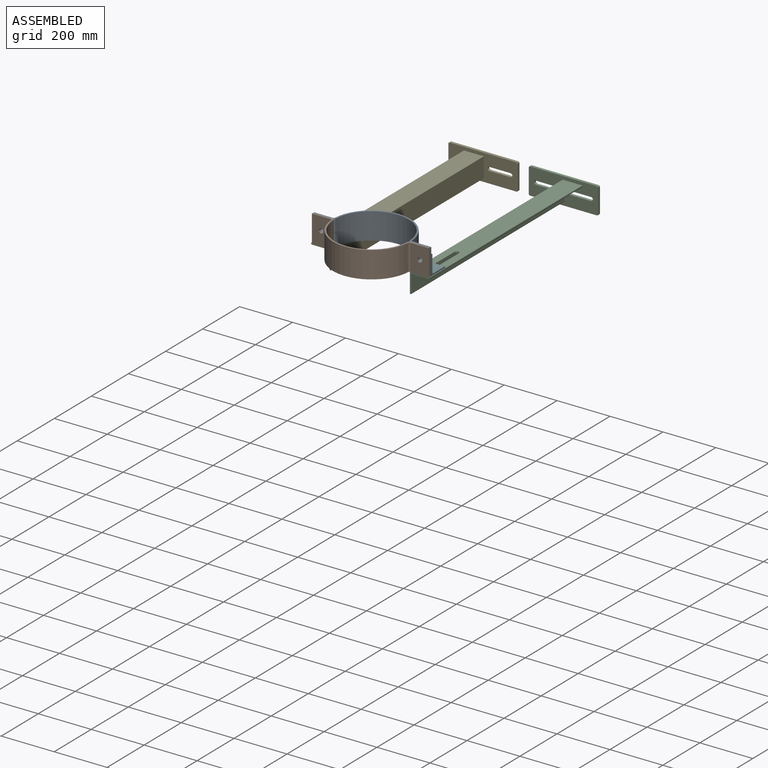
[diagram: assembled view]
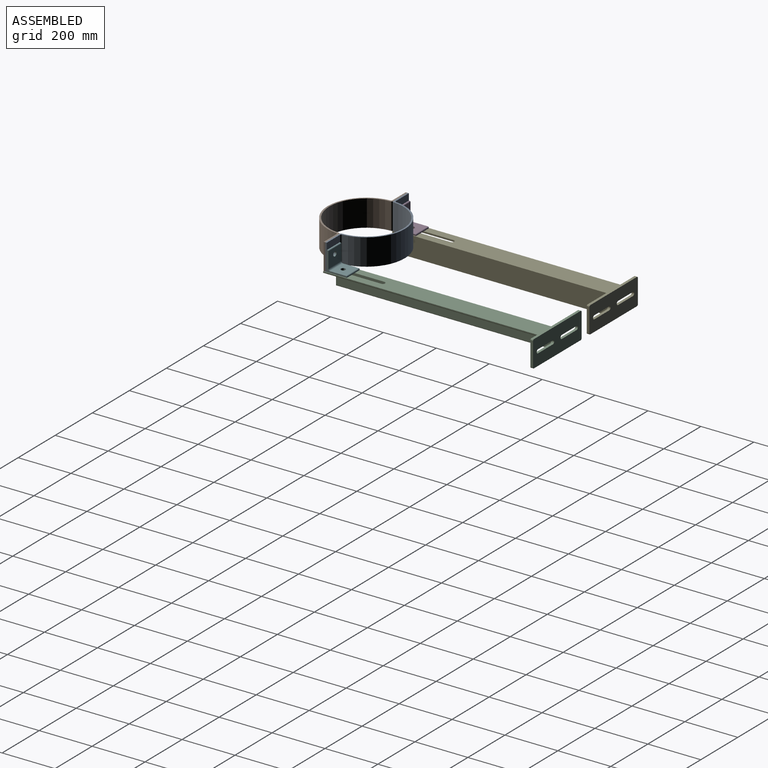
[diagram: assembled view, second angle]
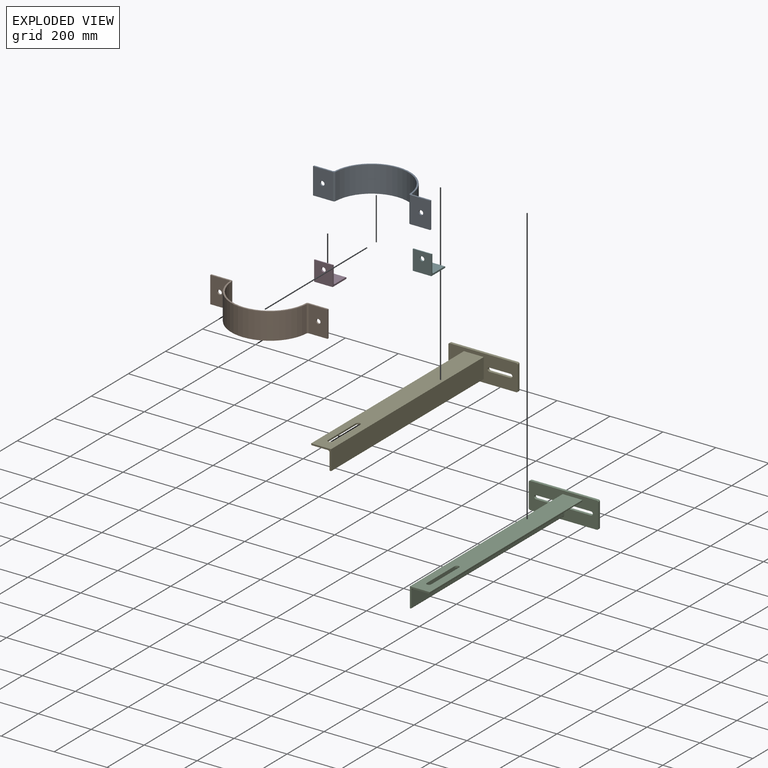
[diagram: exploded view]
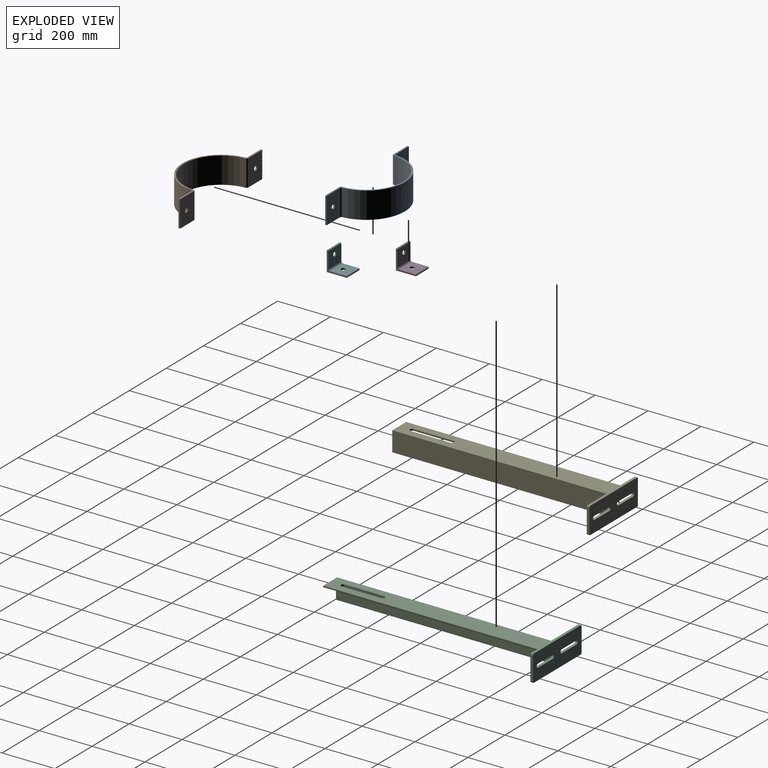
[diagram: exploded view, second angle]
ASSEMBLY  parts=6 mates=5
PART A: 16 faces, bbox 443.1x146x100 mm
  f0: cylinder r=6mm len=100mm, axis (0,0,-1), area 895.1mm2, adj f1,f11,f12,f13
  f1: cylinder r=146mm len=291.09mm, axis (0,0,-1), area 43559.6mm2, adj f0,f2,f12,f13
  f2: cylinder r=6mm len=100mm, axis (0,0,-1), area 895.1mm2, adj f1,f3,f12,f13
  f3: plane 100x70mm, normal (0,1,0), area 6773.1mm2, adj f2,f4,f12,f13,f15
  f4: plane 100x6mm, normal (-1,0,0), area 600mm2, adj f3,f5,f12,f13
  f5: plane 100x75.65mm, normal (0,-1,0), area 7338mm2, adj f4,f6,f12,f13,f15
  f6: cylinder r=6mm len=100mm, axis (0,0,-1), area 917.8mm2, adj f5,f7,f12,f13
  f7: cylinder r=140mm len=279.76mm, axis (0,0,-1), area 42831.3mm2, adj f6,f8,f12,f13
  f8: cylinder r=6mm len=100mm, axis (0,0,-1), area 917.8mm2, adj f7,f9,f12,f13
  f9: plane 100x75.65mm, normal (0,-1,0), area 7338mm2, adj f8,f10,f12,f13,f14
  f10: plane 100x6mm, normal (1,0,0), area 600mm2, adj f9,f11,f12,f13
  f11: plane 100x70mm, normal (0,1,0), area 6773.1mm2, adj f0,f10,f12,f13,f14
  f12: plane 443.05x146mm, normal (0,0,1), area 3601mm2, adj f0,f1,f2,f3,f4,f5,f6,f7
  f13: plane 443.05x146mm, normal (0,0,-1), area 3601mm2, adj f0,f1,f2,f3,f4,f5,f6,f7
  f14: cylinder r=8.5mm len=17mm, axis (0,-1,0), area 320.4mm2, adj f9,f11
  f15: cylinder r=8.5mm len=17mm, axis (0,-1,0), area 320.4mm2, adj f3,f5
PART B: 16 faces, bbox 443.1x146x100 mm
  f0: cylinder r=6mm len=100mm, axis (0,0,-1), area 895.1mm2, adj f1,f11,f12,f13
  f1: cylinder r=146mm len=291.09mm, axis (0,0,-1), area 43559.6mm2, adj f0,f2,f12,f13
  f2: cylinder r=6mm len=100mm, axis (0,0,-1), area 895.1mm2, adj f1,f3,f12,f13
  f3: plane 100x70mm, normal (0,-1,0), area 6773.1mm2, adj f2,f4,f12,f13,f15
  f4: plane 100x6mm, normal (-1,0,0), area 600mm2, adj f3,f5,f12,f13
  f5: plane 100x75.65mm, normal (0,1,0), area 7338mm2, adj f4,f6,f12,f13,f15
  f6: cylinder r=6mm len=100mm, axis (0,0,-1), area 917.8mm2, adj f5,f7,f12,f13
  f7: cylinder r=140mm len=279.76mm, axis (0,0,-1), area 42831.3mm2, adj f6,f8,f12,f13
  f8: cylinder r=6mm len=100mm, axis (0,0,-1), area 917.8mm2, adj f7,f9,f12,f13
  f9: plane 100x75.65mm, normal (0,1,0), area 7338mm2, adj f8,f10,f12,f13,f14
  f10: plane 100x6mm, normal (1,0,0), area 600mm2, adj f9,f11,f12,f13
  f11: plane 100x70mm, normal (0,-1,0), area 6773.1mm2, adj f0,f10,f12,f13,f14
  f12: plane 443.05x146mm, normal (0,0,1), area 3601mm2, adj f0,f1,f2,f3,f4,f5,f6,f7
  f13: plane 443.05x146mm, normal (0,0,-1), area 3601mm2, adj f0,f1,f2,f3,f4,f5,f6,f7
  f14: cylinder r=8.5mm len=17mm, axis (0,1,0), area 320.4mm2, adj f9,f11
  f15: cylinder r=8.5mm len=17mm, axis (0,1,0), area 320.4mm2, adj f3,f5
PART C: 32 faces, bbox 262x834.5x100 mm
  f0: plane 824.5x3mm, normal (1,0,0), area 2473.5mm2, adj f1,f8,f13,f31
  f1: plane 824.5x75mm, normal (0,0,1), area 59060.5mm2, adj f0,f2,f9,f10,f11,f12,f13,f31
  f2: plane 824.5x75mm, normal (-1,0,0), area 61837.5mm2, adj f1,f3,f13,f31
  f3: plane 824.5x3mm, normal (0,0,-1), area 2473.5mm2, adj f2,f4,f13,f31
  f4: cylinder r=3mm len=824.5mm, axis (0,-1,0), area 3885.4mm2, adj f3,f5,f13,f31
  f5: plane 824.5x60mm, normal (1,0,0), area 49470mm2, adj f4,f6,f13,f31
  f6: cylinder r=6mm len=824.5mm, axis (0,-1,0), area 7770.7mm2, adj f5,f7,f13,f31
  f7: plane 824.5x60mm, normal (0,0,-1), area 46693mm2, adj f6,f8,f9,f10,f11,f12,f13,f31
  f8: cylinder r=3mm len=824.5mm, axis (0,-1,0), area 3885.4mm2, adj f0,f7,f13,f31
  f9: cylinder r=8.5mm len=17mm, axis (0,0,1), area 160.2mm2, adj f1,f7,f10,f12
  f10: plane 150x6mm, normal (1,0,0), area 900mm2, adj f1,f7,f9,f11
  f11: cylinder r=8.5mm len=17mm, axis (0,0,1), area 160.2mm2, adj f1,f7,f10,f12
  f12: plane 150x6mm, normal (-1,0,0), area 900mm2, adj f1,f7,f9,f11
  f13: plane 262x100mm, normal (0,-1,0), area 22762.8mm2, adj f0,f1,f2,f3,f4,f5,f6,f7
  f14: plane 90x10mm, normal (1,0,0), area 900mm2, adj f13,f15,f29,f30
  f15: cylinder r=5mm len=10mm, axis (0,-1,0), area 78.5mm2, adj f13,f14,f16,f30
  f16: plane 252x10mm, normal (0,0,-1), area 2520mm2, adj f13,f15,f17,f30
  f17: cylinder r=5mm len=10mm, axis (0,-1,0), area 78.5mm2, adj f13,f16,f18,f30
  f18: plane 90x10mm, normal (-1,0,0), area 900mm2, adj f13,f17,f19,f30
  f19: cylinder r=5mm len=10mm, axis (0,-1,0), area 78.5mm2, adj f13,f18,f20,f30
  f20: plane 252x10mm, normal (0,0,1), area 2520mm2, adj f13,f19,f29,f30
  f21: cylinder r=7mm len=14mm, axis (0,-1,0), area 219.9mm2, adj f13,f22,f27,f30
  f22: plane 80x10mm, normal (0,0,1), area 800mm2, adj f13,f21,f23,f30
  f23: cylinder r=7mm len=14mm, axis (0,-1,0), area 219.9mm2, adj f13,f22,f27,f30
  f24: cylinder r=7mm len=14mm, axis (0,-1,0), area 219.9mm2, adj f13,f25,f28,f30
  f25: plane 80x10mm, normal (0,0,-1), area 800mm2, adj f13,f24,f26,f30
  f26: cylinder r=7mm len=14mm, axis (0,-1,0), area 219.9mm2, adj f13,f25,f28,f30
  f27: plane 80x10mm, normal (0,0,-1), area 800mm2, adj f13,f21,f23,f30
  f28: plane 80x10mm, normal (0,0,1), area 800mm2, adj f13,f24,f26,f30
  f29: cylinder r=5mm len=10mm, axis (0,-1,0), area 78.5mm2, adj f13,f14,f20,f30
  f30: plane 262x100mm, normal (0,1,0), area 23630.7mm2, adj f14,f15,f16,f17,f18,f19,f20,f21
  f31: plane 75x75mm, normal (0,-1,0), area 867.9mm2, adj f0,f1,f2,f3,f4,f5,f6,f7
PART D: 13 faces, bbox 70x75x75 mm
  f0: plane 75x70mm, normal (0,-1,0), area 5023mm2, adj f2,f3,f10,f11,f12
  f1: plane 70x3mm, normal (0,1,0), area 210mm2, adj f2,f9,f11,f12
  f2: plane 75x70mm, normal (0,0,-1), area 5023mm2, adj f0,f1,f7,f11,f12
  f3: plane 70x3mm, normal (0,0,1), area 210mm2, adj f0,f8,f11,f12
  f4: plane 70x60mm, normal (0,0,1), area 3973mm2, adj f6,f7,f9,f11,f12
  f5: plane 70x60mm, normal (0,1,0), area 3973mm2, adj f6,f8,f10,f11,f12
  f6: cylinder r=6mm len=70mm, axis (1,0,0), area 659.7mm2, adj f4,f5,f11,f12
  f7: cylinder r=8.5mm len=17mm, axis (0,0,-1), area 320.4mm2, adj f2,f4
  f8: cylinder r=3mm len=70mm, axis (-1,0,0), area 329.9mm2, adj f3,f5,f11,f12
  f9: cylinder r=3mm len=70mm, axis (-1,0,0), area 329.9mm2, adj f1,f4,f11,f12
  f10: cylinder r=8.5mm len=17mm, axis (0,-1,0), area 320.4mm2, adj f0,f5
  f11: plane 75x75mm, normal (-1,0,0), area 867.9mm2, adj f0,f1,f2,f3,f4,f5,f6,f8
  f12: plane 75x75mm, normal (1,0,0), area 867.9mm2, adj f0,f1,f2,f3,f4,f5,f6,f8
PART E: 32 faces, bbox 262x834.5x100 mm
  f0: plane 824.5x3mm, normal (-1,0,0), area 2473.5mm2, adj f1,f8,f13,f31
  f1: plane 824.5x75mm, normal (0,0,1), area 59060.5mm2, adj f0,f2,f9,f10,f11,f12,f13,f31
  f2: plane 824.5x75mm, normal (1,0,0), area 61837.5mm2, adj f1,f3,f13,f31
  f3: plane 824.5x3mm, normal (0,0,-1), area 2473.5mm2, adj f2,f4,f13,f31
  f4: cylinder r=3mm len=824.5mm, axis (0,-1,0), area 3885.4mm2, adj f3,f5,f13,f31
  f5: plane 824.5x60mm, normal (-1,0,0), area 49470mm2, adj f4,f6,f13,f31
  f6: cylinder r=6mm len=824.5mm, axis (0,-1,0), area 7770.7mm2, adj f5,f7,f13,f31
  f7: plane 824.5x60mm, normal (0,0,-1), area 46693mm2, adj f6,f8,f9,f10,f11,f12,f13,f31
  f8: cylinder r=3mm len=824.5mm, axis (0,-1,0), area 3885.4mm2, adj f0,f7,f13,f31
  f9: cylinder r=8.5mm len=17mm, axis (0,0,1), area 160.2mm2, adj f1,f7,f10,f12
  f10: plane 150x6mm, normal (-1,0,0), area 900mm2, adj f1,f7,f9,f11
  f11: cylinder r=8.5mm len=17mm, axis (0,0,1), area 160.2mm2, adj f1,f7,f10,f12
  f12: plane 150x6mm, normal (1,0,0), area 900mm2, adj f1,f7,f9,f11
  f13: plane 262x100mm, normal (0,-1,0), area 22762.8mm2, adj f0,f1,f2,f3,f4,f5,f6,f7
  f14: plane 90x10mm, normal (-1,0,0), area 900mm2, adj f13,f15,f29,f30
  f15: cylinder r=5mm len=10mm, axis (0,-1,0), area 78.5mm2, adj f13,f14,f16,f30
  f16: plane 252x10mm, normal (0,0,-1), area 2520mm2, adj f13,f15,f17,f30
  f17: cylinder r=5mm len=10mm, axis (0,-1,0), area 78.5mm2, adj f13,f16,f18,f30
  f18: plane 90x10mm, normal (1,0,0), area 900mm2, adj f13,f17,f19,f30
  f19: cylinder r=5mm len=10mm, axis (0,-1,0), area 78.5mm2, adj f13,f18,f20,f30
  f20: plane 252x10mm, normal (0,0,1), area 2520mm2, adj f13,f19,f29,f30
  f21: cylinder r=7mm len=14mm, axis (0,-1,0), area 219.9mm2, adj f13,f22,f27,f30
  f22: plane 80x10mm, normal (0,0,1), area 800mm2, adj f13,f21,f23,f30
  f23: cylinder r=7mm len=14mm, axis (0,-1,0), area 219.9mm2, adj f13,f22,f27,f30
  f24: cylinder r=7mm len=14mm, axis (0,-1,0), area 219.9mm2, adj f13,f25,f28,f30
  f25: plane 80x10mm, normal (0,0,-1), area 800mm2, adj f13,f24,f26,f30
  f26: cylinder r=7mm len=14mm, axis (0,-1,0), area 219.9mm2, adj f13,f25,f28,f30
  f27: plane 80x10mm, normal (0,0,-1), area 800mm2, adj f13,f21,f23,f30
  f28: plane 80x10mm, normal (0,0,1), area 800mm2, adj f13,f24,f26,f30
  f29: cylinder r=5mm len=10mm, axis (0,-1,0), area 78.5mm2, adj f13,f14,f20,f30
  f30: plane 262x100mm, normal (0,1,0), area 23630.7mm2, adj f14,f15,f16,f17,f18,f19,f20,f21
  f31: plane 75x75mm, normal (0,-1,0), area 867.9mm2, adj f0,f1,f2,f3,f4,f5,f6,f7
PART F: 13 faces, bbox 70x75x75 mm
  f0: plane 75x70mm, normal (0,-1,0), area 5023mm2, adj f2,f3,f10,f11,f12
  f1: plane 70x3mm, normal (0,1,0), area 210mm2, adj f2,f9,f11,f12
  f2: plane 75x70mm, normal (0,0,-1), area 5023mm2, adj f0,f1,f7,f11,f12
  f3: plane 70x3mm, normal (0,0,1), area 210mm2, adj f0,f8,f11,f12
  f4: plane 70x60mm, normal (0,0,1), area 3973mm2, adj f6,f7,f9,f11,f12
  f5: plane 70x60mm, normal (0,1,0), area 3973mm2, adj f6,f8,f10,f11,f12
  f6: cylinder r=6mm len=70mm, axis (-1,0,0), area 659.7mm2, adj f4,f5,f11,f12
  f7: cylinder r=8.5mm len=17mm, axis (0,0,-1), area 320.4mm2, adj f2,f4
  f8: cylinder r=3mm len=70mm, axis (1,0,0), area 329.9mm2, adj f3,f5,f11,f12
  f9: cylinder r=3mm len=70mm, axis (1,0,0), area 329.9mm2, adj f1,f4,f11,f12
  f10: cylinder r=8.5mm len=17mm, axis (0,-1,0), area 320.4mm2, adj f0,f5
  f11: plane 75x75mm, normal (1,0,0), area 867.9mm2, adj f0,f1,f2,f3,f4,f5,f6,f8
  f12: plane 75x75mm, normal (-1,0,0), area 867.9mm2, adj f0,f1,f2,f3,f4,f5,f6,f8
PLACE A t=(-413.26,-353.35,-144.03)mm
PLACE B t=(-413.26,-353.35,-144.03)mm
PLACE C t=(-264.23,-349.85,-144.03)mm
PLACE D t=(-306.29,-499.85,-144.03)mm
PLACE E t=(-306.29,-349.85,-144.03)mm
PLACE F t=(-264.23,-499.85,-144.03)mm
MATE fastened D.f10 <-> A.f15  axis (0,-1,0) through (-599.79,-347.35,-94.03)mm
MATE fastened C.f11 <-> F.f7  axis (0,0,1) through (-226.73,-309.85,-144.03)mm
MATE fastened E.f11 <-> D.f7  axis (0,0,1) through (-599.79,-309.85,-144.03)mm
MATE fastened F.f10 <-> A.f14  axis (0,-1,0) through (-226.73,-347.35,-94.03)mm
MATE fastened B.f15 <-> A.f15  axis (0,1,0) through (-599.79,-353.35,-94.03)mm
